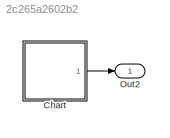
MODEL slx_2c265a2602b2
KIND model
CONFIG AbsTol = auto
CONFIG EnableMultiTasking = on
CONFIG FixedStep = 0.2
CONFIG MaxStep = auto
CONFIG MinStep = auto
CONFIG RelTol = 1e-3
CONFIG SampleTimeConstraint = Unconstrained
CONFIG Solver = FixedStepDiscrete
CONFIG SolverName = FixedStepDiscrete
CONFIG StartTime = 0.0
CONFIG StopTime = 19.8
WORKSPACE source: MAT-file member
WORKSPACE already_pp = 1
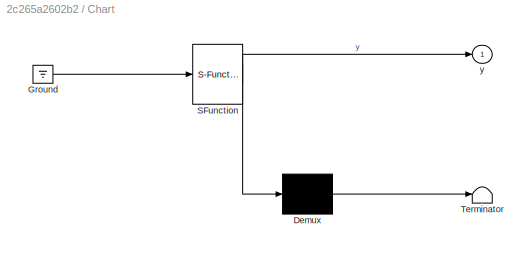
BLOCK [SubSystem] Chart
  ErrorFcn = Stateflow.Translate.translate
  PermitHierarchicalResolution = ExplicitOnly
  Ports = [0, 1]
  RequestExecContextInheritance = off
  SFBlockType = Chart
  TreatAsAtomicUnit = on
  Variant = off
BLOCK [Demux] Chart/ Demux 
  Outputs = 1
  Ports = [1, 1]
BLOCK [Ground] Chart/ Ground 
BLOCK [S-Function] Chart/ SFunction 
  EnableBusSupport = on
  FunctionName = sf_sfun
  PortCounts = [1 2]
  Ports = [1, 2]
  SFcnIsStateOwnerBlock = off
  SFunctionDeploymentMode = off
  Tag = Stateflow S-Function simple 3
BLOCK [Terminator] Chart/ Terminator 
BLOCK [Outport] Chart/y
  IconDisplay = Port number
BLOCK [Outport] Out2
  IconDisplay = Port number
LINE Chart:1 -> Out2:1
CHART Chart states=3 transitions=4
  STATE_LABEL 'A'
  STATE_LABEL 'B\nen:\nx =  0.0;\ny=0.0;\ndu:\nx = x + 1.0;\ny = x -1.0;'
  STATE_LABEL '[x==0.0]'
  STATE_LABEL 'B\nen:\nx =  0.0;\ny=0.0;\ndu:\nx = x + 1.0;\ny = x -1.0;'
  STATE_LABEL 'C\ndu: y = y + 1'
